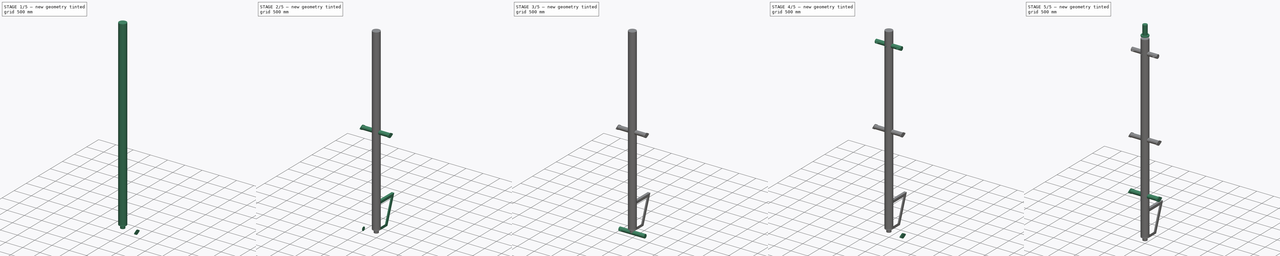
[diagram: build sequence overview — one tinted view per stage of 5, left to right]
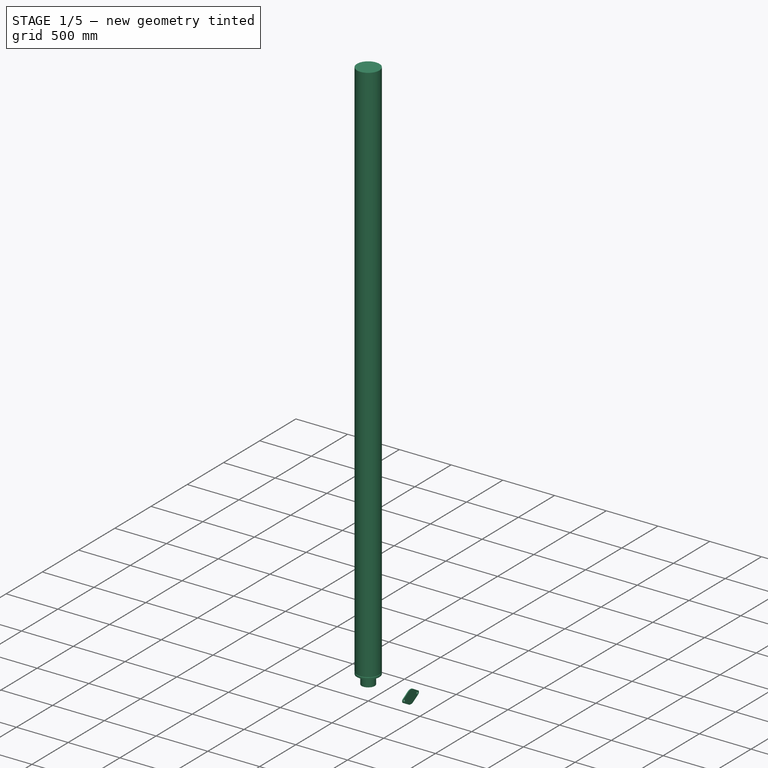
[diagram: stage 1 of 5 — iso view after this stage's code; geometry added in this stage tinted green]
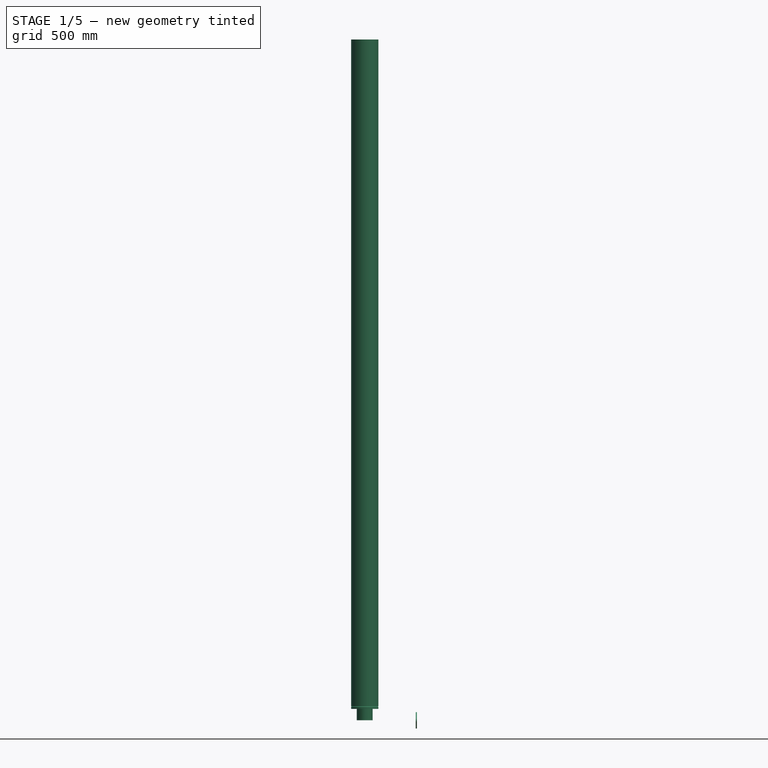
[diagram: stage 1 of 5 — front view after this stage's code; geometry added in this stage tinted green]
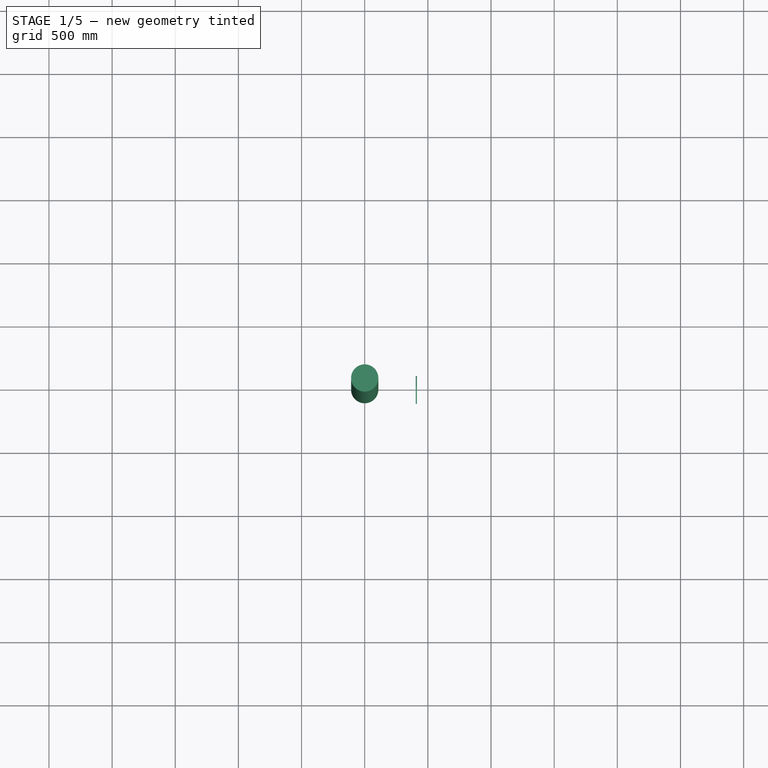
[diagram: stage 1 of 5 — top view after this stage's code; geometry added in this stage tinted green]
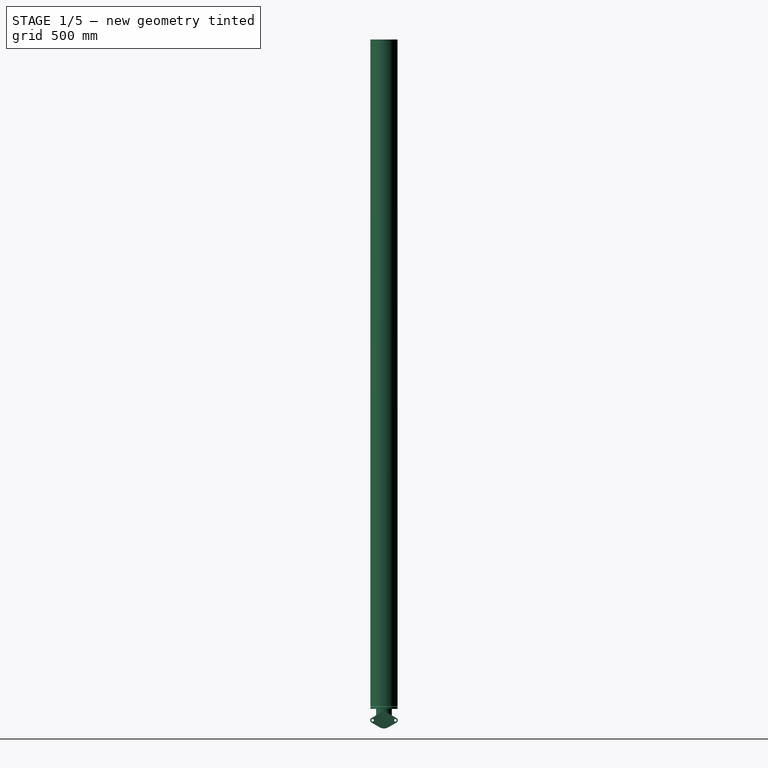
[diagram: stage 1 of 5 — right view after this stage's code; geometry added in this stage tinted green]
FCSTD DOCUMENT  (FreeCAD 1.0R39109 (Git))
Label: mainShaft
License: All rights reserved
LicenseURL: https://en.wikipedia.org/wiki/All_rights_reserved
objects: Sketcher::SketchObject×12, Part::Extrusion×7, Part::Compound×4, PartDesign::Body×3, Part::FeaturePython×3, Part::Mirroring×3, PartDesign::ShapeBinder×3, PartDesign::Revolution×2, PartDesign::Pad×2, App::Part×2, PartDesign::Chamfer×1, Spreadsheet::Sheet×1, Part::Sweep×1
note: 63 computed .brp shape members not serialized (recipe doc carries the construction recipe); baked Part::Feature solids carry a one-line shape summary decoded from their .brp

FEATURE [Sketcher::SketchObject] Sketch002
  ArcFitTolerance = 0
  AttachmentSupport = -> [XZ_Plane001]
  FullyConstrained = true
  MakeInternals = false
  MapMode = 5
  Placement = pos=(0,0,0) rot=(1,0,0;1.5708rad)
  sketch-geometry (8):
    g0: LineSegment StartX=40 StartY=0 StartZ=0 EndX=62.5 EndY=0 EndZ=0
    g1: LineSegment StartX=62.5 StartY=0 StartZ=0 EndX=62.5 EndY=90 EndZ=0
    g2: LineSegment StartX=62.5 StartY=90 StartZ=0 EndX=108 EndY=90 EndZ=0
    g3: LineSegment StartX=108 StartY=90 StartZ=0 EndX=108 EndY=110 EndZ=0
    g4: LineSegment StartX=108 StartY=110 StartZ=0 EndX=0 EndY=110 EndZ=0
    g5: LineSegment StartX=0 StartY=110 StartZ=0 EndX=0 EndY=65 EndZ=0
    g6: LineSegment StartX=40 StartY=0 StartZ=0 EndX=40 EndY=65 EndZ=0
    g7: LineSegment StartX=40 StartY=65 StartZ=0 EndX=0 EndY=65 EndZ=0
  constraints (24):
    c: PointOnObject(g0,g-1)
    c: Coincident(g0,g1)
    c: Vertical(g1)
    c: Coincident(g1,g2)
    c: Horizontal(g2)
    c: Coincident(g2,g3)
    c: Vertical(g3)
    c: Coincident(g3,g4)
    c: Horizontal(g4)
    c: Coincident(g4,g5)
    c: Vertical(g5)
    c: Vertical(g6)
    c: Coincident(g6,g7)
    c: Horizontal(g7)
    c: Coincident(g0,g6)
    c: Coincident(g5,g7)
    c: DistanceX(g-1,g0) = 40
    c: DistanceX(g-1,g0) = 62.5
    c: DistanceY(g6,g6) = 65
    c: Horizontal(g0)
    c: DistanceY(g1,g1) = 90
    c: DistanceY(g3,g3) = 20
    c: DistanceX(g4,g4) = 108
    c: PointOnObject(g4,g-2)
FEATURE [PartDesign::Revolution] Revolution001
  Angle = 360
  Angle2 = 60
  Axis = (0,2e-16,1)
  Base = (0,0,0)
  Placement = pos=(0,0,0) rot=(1,0,0;1.5708rad)
  Profile = -> Sketch002
  ReferenceAxis = -> Sketch002 [V_Axis]
  Reversed = true
  Suppressed = false
  Type = 0
FEATURE [PartDesign::Chamfer] Chamfer001
  Angle = 45
  Base = -> Revolution001 [Edge6]
  BaseFeature = -> Revolution001
  ChamferType = 0
  FlipDirection = false
  Placement = pos=(0,0,0) rot=(1,0,0;1.5708rad)
  Size = 5
  Size2 = 1
  SupportTransform = false
  Suppressed = false
  UseAllEdges = false
FEATURE [Sketcher::SketchObject] Sketch015
  ArcFitTolerance = 0
  AttachmentSupport = -> [Extrude006]
  FullyConstrained = true
  MakeInternals = false
  MapMode = 5
  Placement = pos=(417,0,0) rot=(0.57735,0.57735,0.57735;2.0944rad)
  sketch-geometry (10):
    g0: LineSegment StartX=32.5 StartY=56.2917 StartZ=0 EndX=100 EndY=17.3205 EndZ=0
    g1: ArcOfCircle CenterX=90 CenterY=0 CenterZ=0 NormalX=0 NormalY=0 NormalZ=1 AngleXU=0 Radius=20 StartAngle=5.23599 EndAngle=7.33038
    g2: LineSegment StartX=100 StartY=-17.3205 StartZ=0 EndX=32.5 EndY=-56.2917 EndZ=0
    g3: ArcOfCircle CenterX=0 CenterY=0 CenterZ=0 NormalX=0 NormalY=0 NormalZ=1 AngleXU=0 Radius=65 StartAngle=4.18879 EndAngle=5.23599
    g4: LineSegment StartX=-32.5 StartY=-56.2917 StartZ=0 EndX=-100 EndY=-17.3205 EndZ=0
    g5: ArcOfCircle CenterX=-90 CenterY=0 CenterZ=0 NormalX=0 NormalY=0 NormalZ=1 AngleXU=0 Radius=20 StartAngle=2.0944 EndAngle=4.18879
    g6: LineSegment StartX=-100 StartY=17.3205 StartZ=0 EndX=-32.5 EndY=56.2917 EndZ=0
    g7: ArcOfCircle CenterX=0 CenterY=0 CenterZ=0 NormalX=0 NormalY=0 NormalZ=1 AngleXU=0 Radius=65 StartAngle=1.0472 EndAngle=2.0944
    g8: Circle CenterX=90 CenterY=0 CenterZ=0 NormalX=0 NormalY=0 NormalZ=1 AngleXU=0 Radius=10
    g9: Circle CenterX=-90 CenterY=0 CenterZ=0 NormalX=0 NormalY=0 NormalZ=1 AngleXU=0 Radius=10
  constraints (24):
    c: Tangent(g0,g1) = 1.5708
    c: Coincident(g1,g2)
    c: Tangent(g2,g3) = 1.5708
    c: Coincident(g3,g4)
    c: Tangent(g4,g5) = 1.5708
    c: Tangent(g6,g7) = 1.5708
    c: Coincident(g7,g0)
    c: Coincident(g8,g1)
    c: Coincident(g9,g5)
    c: Coincident(g-1,g3)
    c: Coincident(g-1,g7)
    c: Diameter(g8) = 20
    c: Equal(g8,g9)
    c: Radius(g1) = 20
    c: Equal(g1,g5)
    c: Symmetric(g5,g1,g3)
    c: PointOnObject(g5,g-1)
    c: Tangent(g5,g6) = 1.5708
    c: Equal(g0,g2)
    c: Equal(g2,g4)
    c: Equal(g4,g6)
    c: DistanceX(g3,g1) = 90
    c: Radius(g3) = 65
    c: Equal(g3,g7)
FEATURE [Part::Extrusion] Extrude007  label="Extrude009"
  Base = -> Sketch015
  Dir = (1,0,0)
  DirMode = 2
  FaceMakerClass = Part::FaceMakerBullseye
  FaceMakerMode = 3
  LengthFwd = 9
  LengthRev = 0
  Placement = pos=(-12.5,0,0) rot=(0,0,1;0rad)
  Solid = true
  Symmetric = false
FEATURE [Sketcher::SketchObject] Sketch
  ArcFitTolerance = 1e-06
  AttachmentSupport = -> [Chamfer001]
  FullyConstrained = true
  MakeInternals = false
  MapMode = 5
  Placement = pos=(0,4.84e-14,110) rot=(0,0,1;3.14159rad)
  sketch-geometry (1):
    g0: Circle CenterX=0 CenterY=0 CenterZ=0 NormalX=0 NormalY=0 NormalZ=1 AngleXU=0 Radius=108
  constraints (2):
    c: Coincident(g0,g-1)
    c: Diameter(g0) = 216
FEATURE [PartDesign::Pad] Pad
  BaseFeature = -> Chamfer001
  Direction = (0,0,1)
  Length = 5280
  Length2 = 10
  Placement = pos=(0,0,0) rot=(1,0,0;1.5708rad)
  Profile = -> Sketch
  ReferenceAxis = -> Sketch [N_Axis]
  Suppressed = false
  Type = 0
  expr: Length = Spreadsheet.L0 - 420
FEATURE [PartDesign::Body] Body001  label="turnBackle001"
  AllowCompound = false
  Group = -> [Sketch002,Revolution001,Chamfer001,Sketch,Pad]
  Origin = -> Origin001
  Placement = pos=(0,0,60) rot=(0,0,1;0rad)
  Tip = -> Pad
FEATURE [App::Part] Part  label="mainShaft"
  Group = -> [Part001,Spreadsheet,Sketch004,Clone,Extrude001,Sketch005,Extrude,Compound,Part__Mirroring,Compound001,Sketch006,Extrude002,Sketch007,Extrude003,Body002,Body001,Sketch009,Extrude005,Mirror001,Compound002,Extrude007,Extrude006,Sketch014,Sketch015,Clone001,Compound003]
  Origin = -> Origin006
  Placement = pos=(0,0,0) rot=(0,0,1;3.14159rad)
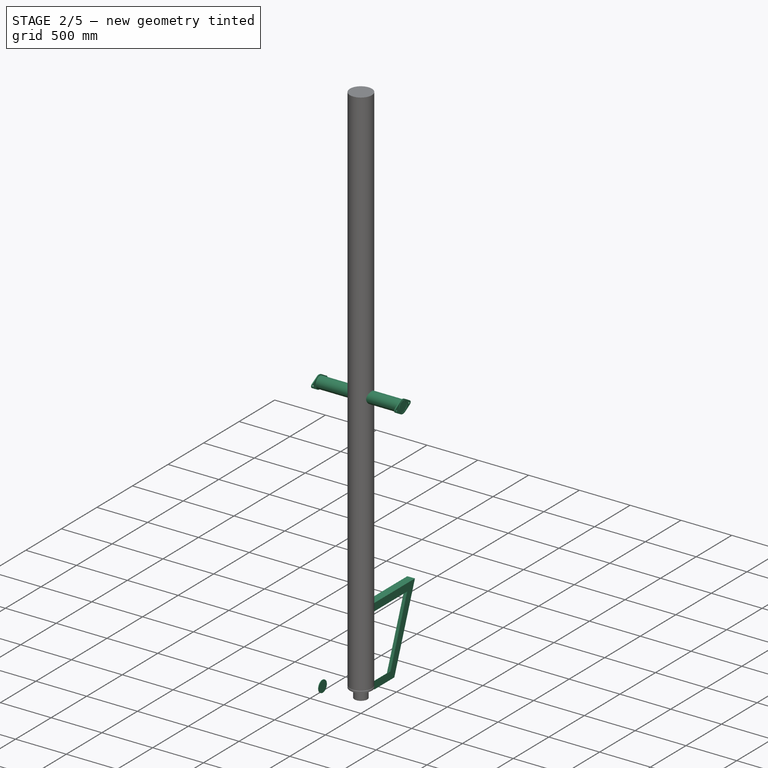
[diagram: stage 2 of 5 — iso view after this stage's code; geometry added in this stage tinted green]
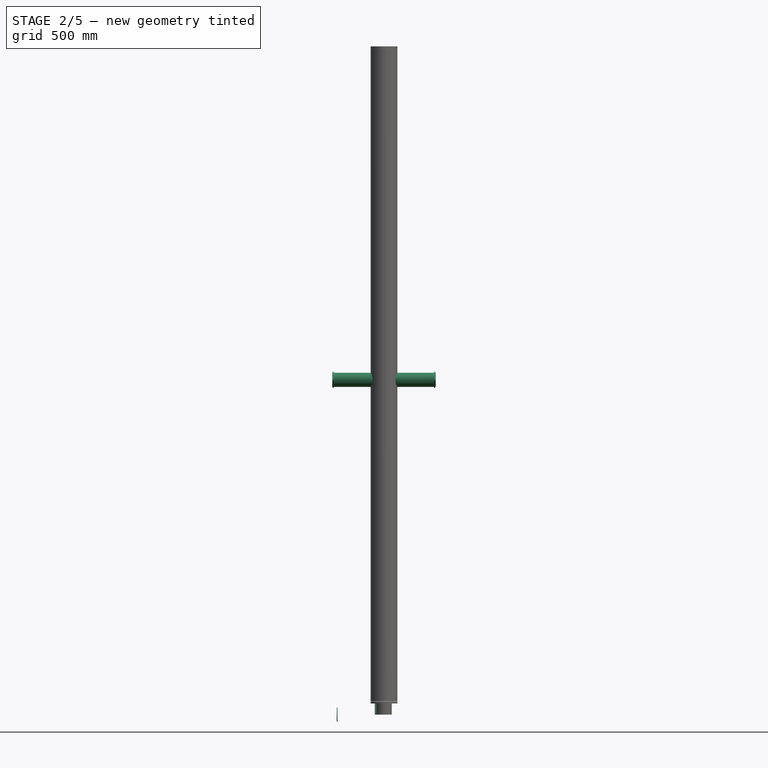
[diagram: stage 2 of 5 — front view after this stage's code; geometry added in this stage tinted green]
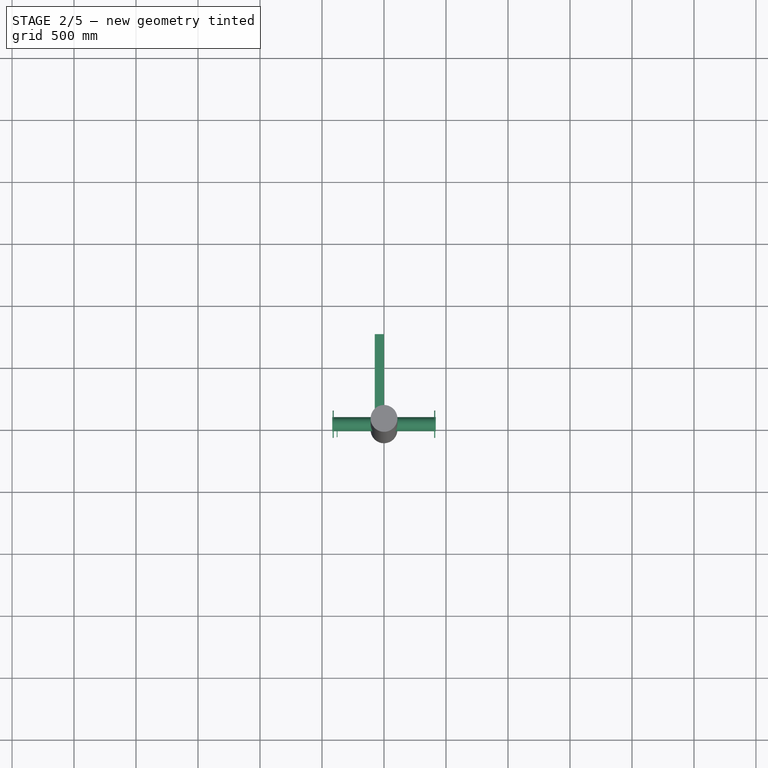
[diagram: stage 2 of 5 — top view after this stage's code; geometry added in this stage tinted green]
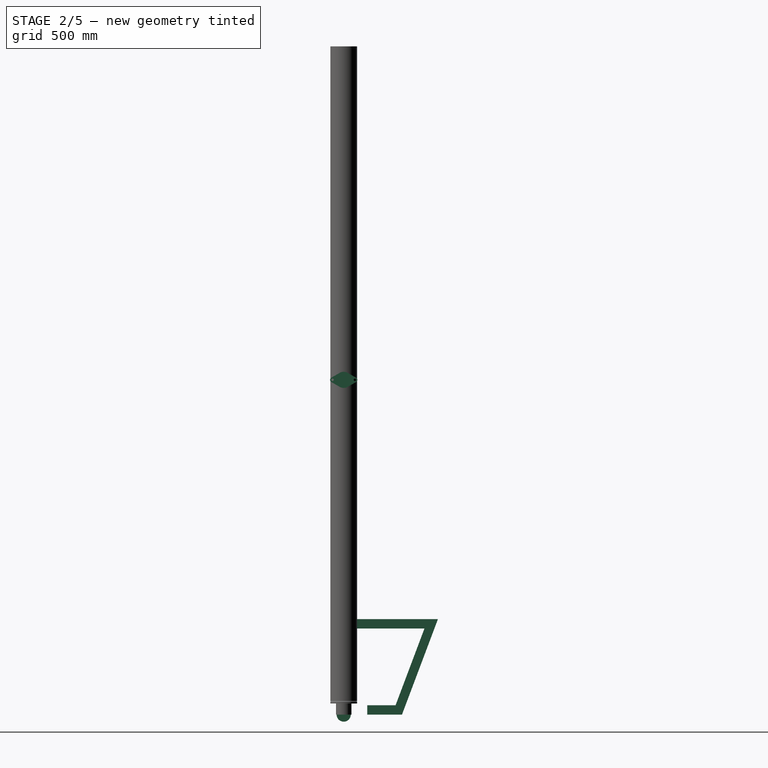
[diagram: stage 2 of 5 — right view after this stage's code; geometry added in this stage tinted green]
FEATURE [PartDesign::ShapeBinder] CopyExtrude002
  TraceSupport = false
FEATURE [Sketcher::SketchObject] Sketch011
  ArcFitTolerance = 1e-06
  AttachmentSupport = -> [CopyExtrude002]
  FullyConstrained = true
  MakeInternals = false
  MapMode = 5
  Placement = pos=(-375,0,0) rot=(0.57735,-0.57735,-0.57735;2.0944rad)
  sketch-geometry (1):
    g0: Circle CenterX=0 CenterY=0 CenterZ=0 NormalX=0 NormalY=0 NormalZ=1 AngleXU=0 Radius=57
  constraints (2):
    c: Coincident(g0,g-1)
    c: Diameter(g0) = 114
FEATURE [PartDesign::Pad] Pad001
  Direction = (-1,0,0)
  Length = 6
  Length2 = 10
  Profile = -> Sketch011
  ReferenceAxis = -> Sketch011 [N_Axis]
  Suppressed = false
  Type = 0
FEATURE [Sketcher::SketchObject] Sketch013
  ArcFitTolerance = 1e-06
  FullyConstrained = true
  MakeInternals = false
  Placement = pos=(0,0,0) rot=(0.57735,0.57735,0.57735;2.0944rad)
  sketch-geometry (3):
    g0: LineSegment StartX=0 StartY=770 StartZ=0 EndX=760 EndY=770 EndZ=0
    g1: LineSegment StartX=760 StartY=770 StartZ=0 EndX=470 EndY=0 EndZ=0
    g2: LineSegment StartX=470 StartY=0 StartZ=0 EndX=190 EndY=0 EndZ=0
  constraints (10):
    c: Horizontal(g0)
    c: Coincident(g0,g1)
    c: PointOnObject(g1,g-1)
    c: Coincident(g1,g2)
    c: PointOnObject(g2,g-1)
    c: PointOnObject(g0,g-2)
    c: DistanceX(g0,g0) = 760
    c: DistanceY(g-1,g0) = 770
    c: DistanceX(g2,g1) = 280
    c: Distance(g1,g-2) = 470
FEATURE [Part::FeaturePython] AngleSteel  # WARN: FeaturePython — macro-defined, semantics opaque (R4)
  A = 75
  B = 75
  L = 5500
  Placement = pos=(0,0,770) rot=(0,1,0;3.14159rad)
  Solid = false
  g0 = 7.85
  mass = 0
  size = 10
  standard = SS_Equal
  t = 6
  type = 00_Angle
FEATURE [Part::Sweep] Sweep
  Frenet = true
  Sections = -> [AngleSteel]
  Solid = true
  Spine = -> Sketch013 [Edge1,Edge2,Edge3]
  Transition = 1
FEATURE [App::Part] Part001  label="shaft"
  Group = -> [Sketch013,AngleSteel,Sweep]
  Origin = -> Origin004
  Placement = pos=(0,0,60) rot=(0,0,1;0rad)
FEATURE [Sketcher::SketchObject] Sketch014
  ArcFitTolerance = 0
  FullyConstrained = true
  MakeInternals = false
  Placement = pos=(0,0,0) rot=(0.57735,0.57735,0.57735;2.0944rad)
  sketch-geometry (2):
    g0: Circle CenterX=0 CenterY=0 CenterZ=0 NormalX=0 NormalY=0 NormalZ=1 AngleXU=0 Radius=50
    g1: Circle CenterX=0 CenterY=0 CenterZ=0 NormalX=0 NormalY=0 NormalZ=1 AngleXU=0 Radius=57
  constraints (4):
    c: Coincident(g0,g-1)
    c: Coincident(g1,g0)
    c: Diameter(g1) = 114
    c: Diameter(g0) = 100
FEATURE [Part::Extrusion] Extrude006  label="Extrude008"
  Base = -> Sketch014
  Dir = (1,0,0)
  DirMode = 2
  FaceMakerClass = Part::FaceMakerBullseye
  FaceMakerMode = 3
  LengthFwd = 834
  LengthRev = 0
  Solid = true
  Symmetric = true
  expr: LengthFwd = Spreadsheet.rbw + 34
FEATURE [Part::FeaturePython] Clone001  label="Extrude010"  # Draft clone (typed FeaturePython)
  AttacherType = Attacher::AttachEngine3D
  Fuse = false
  Objects = -> [Extrude007]
  Placement = pos=(-831,0,0) rot=(0,0,1;0rad)
  Scale = (1,1,1)
  expr: .Placement.Base.x = -Spreadsheet.rbw - 34 + 3
FEATURE [Part::Compound] Compound003  label="turnBackle"
  Links = -> [Clone001,Extrude006,Extrude007]
  Placement = pos=(0,0,2700) rot=(0,0,1;0rad)
  expr: .Placement.Base.z = Spreadsheet.lk + Spreadsheet.rts
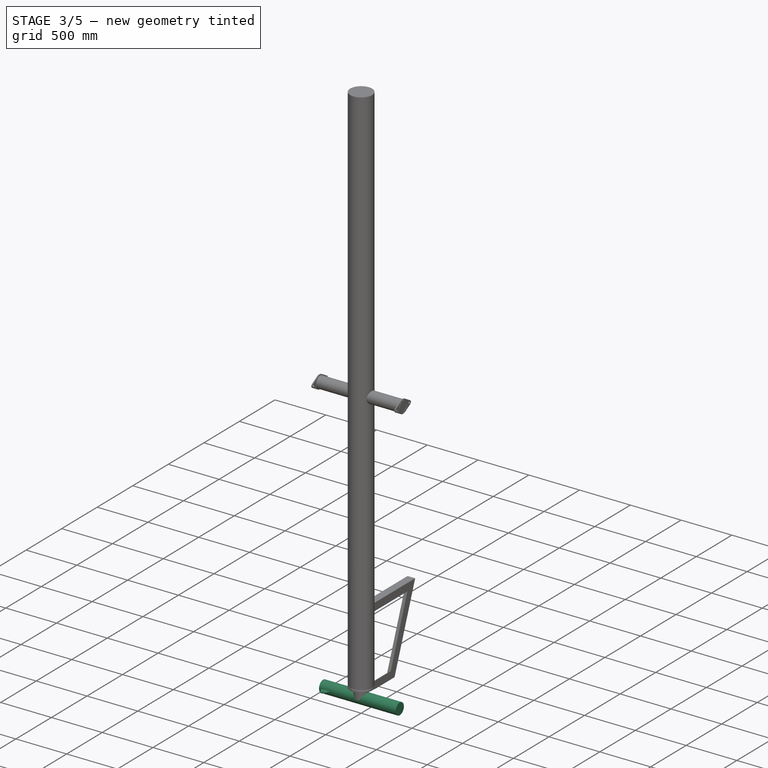
[diagram: stage 3 of 5 — iso view after this stage's code; geometry added in this stage tinted green]
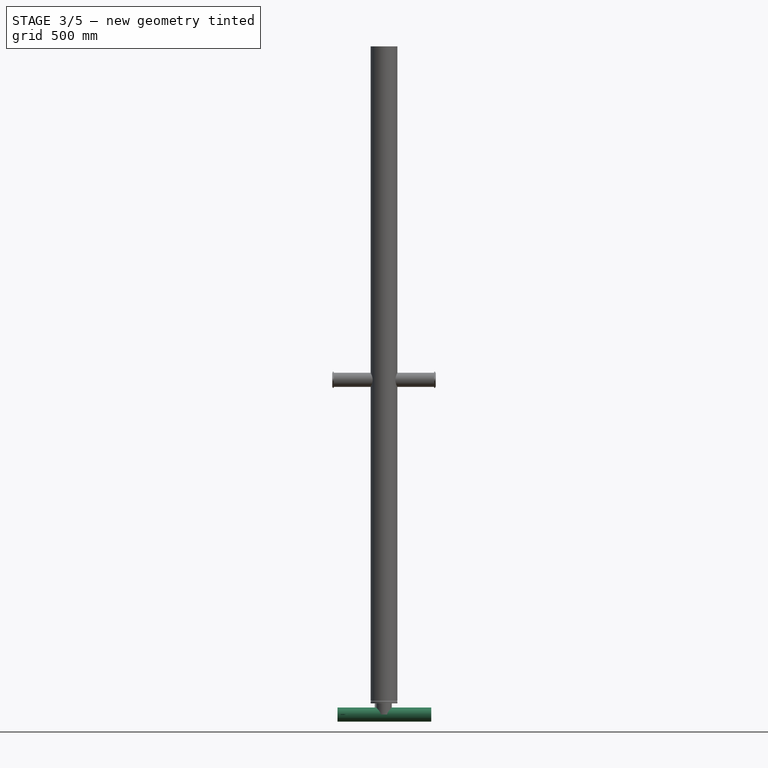
[diagram: stage 3 of 5 — front view after this stage's code; geometry added in this stage tinted green]
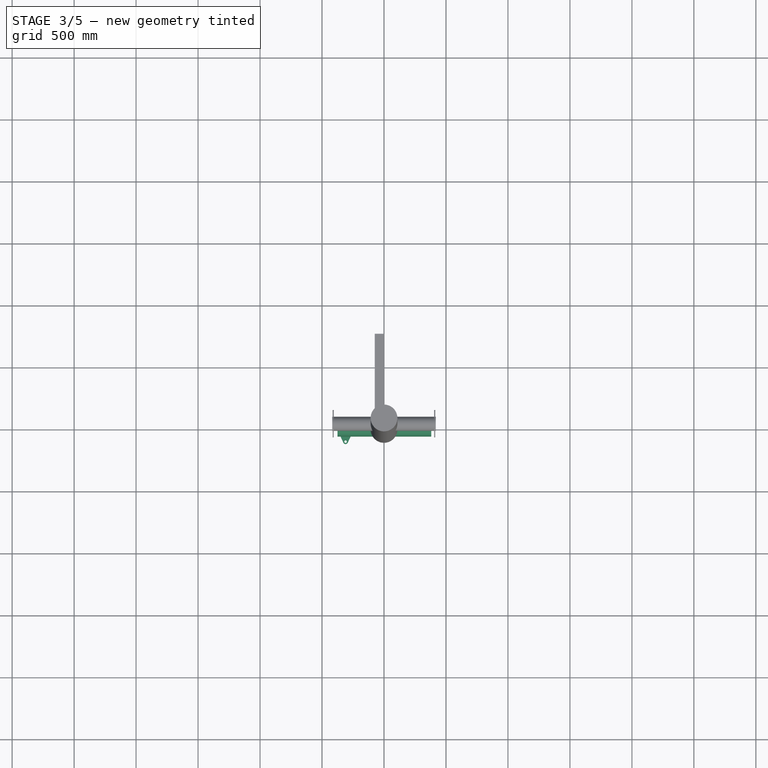
[diagram: stage 3 of 5 — top view after this stage's code; geometry added in this stage tinted green]
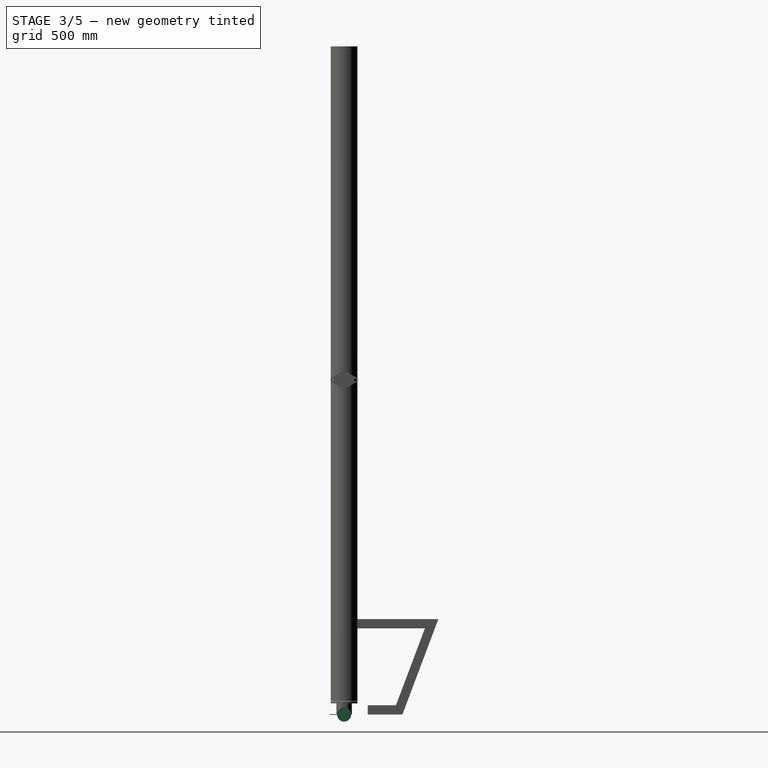
[diagram: stage 3 of 5 — right view after this stage's code; geometry added in this stage tinted green]
FEATURE [Sketcher::SketchObject] Sketch006
  ArcFitTolerance = 0
  FullyConstrained = true
  MakeInternals = false
  Placement = pos=(0,0,0) rot=(0.57735,0.57735,0.57735;2.0944rad)
  sketch-geometry (2):
    g0: Circle CenterX=0 CenterY=0 CenterZ=0 NormalX=0 NormalY=0 NormalZ=1 AngleXU=0 Radius=50
    g1: Circle CenterX=0 CenterY=0 CenterZ=0 NormalX=0 NormalY=0 NormalZ=1 AngleXU=0 Radius=57
  constraints (4):
    c: Coincident(g0,g-1)
    c: Coincident(g1,g0)
    c: Diameter(g0) = 100
    c: Diameter(g1) = 114
FEATURE [Part::Extrusion] Extrude002  label="Extrude003"
  Base = -> Sketch006
  Dir = (1,0,0)
  DirMode = 2
  FaceMakerClass = Part::FaceMakerBullseye
  FaceMakerMode = 3
  LengthFwd = 750
  LengthRev = 0
  Solid = true
  Symmetric = true
  expr: LengthFwd = Spreadsheet.sbw
FEATURE [Sketcher::SketchObject] Sketch009
  ArcFitTolerance = 0
  FullyConstrained = true
  MakeInternals = false
  sketch-geometry (5):
    g0: LineSegment StartX=350 StartY=-57 StartZ=0 EndX=270 EndY=-57 EndZ=0
    g1: LineSegment StartX=270 StartY=-57 StartZ=0 EndX=291.771 EndY=-105.229 EndZ=0
    g2: ArcOfCircle CenterX=310 CenterY=-97 CenterZ=0 NormalX=0 NormalY=0 NormalZ=1 AngleXU=0 Radius=20 StartAngle=3.56562 EndAngle=5.85915
    g3: LineSegment StartX=328.229 StartY=-105.229 StartZ=0 EndX=350 EndY=-57 EndZ=0
    g4: Circle CenterX=310 CenterY=-97 CenterZ=0 NormalX=0 NormalY=0 NormalZ=1 AngleXU=0 Radius=10
  constraints (13):
    c: Horizontal(g0)
    c: Coincident(g0,g1)
    c: Tangent(g1,g2) = -1.5708
    c: Coincident(g3,g0)
    c: Coincident(g4,g2)
    c: Diameter(g4) = 20
    c: Radius(g2) = 20
    c: DistanceX(g0,g0) = 80
    c: Distance(g2,g0) = 40
    c: Tangent(g2,g3) = -1.5708
    c: Equal(g1,g3)
    c: DistanceY(g0,g-1) = 57
    c: DistanceX(g-1,g0) = 350
FEATURE [Part::Extrusion] Extrude005  label="Extrude006"
  Base = -> Sketch009
  Dir = (0,0,1)
  DirMode = 2
  FaceMakerClass = Part::FaceMakerBullseye
  FaceMakerMode = 3
  LengthFwd = 6
  LengthRev = 0
  Solid = true
  Symmetric = true
FEATURE [Part::Mirroring] Mirror001  label="Extrude006 (mirrored)"
  Base = (0,-500,0)
  Normal = (1,0,0)
  Source = -> Extrude005
FEATURE [PartDesign::ShapeBinder] CopyExtrude003
  TraceSupport = false
FEATURE [PartDesign::ShapeBinder] ReferenceExtrude002
  Support = -> [Extrude002]
  TraceSupport = false
FEATURE [PartDesign::Body] Body
  AllowCompound = false
  Group = -> [CopyExtrude002,Sketch011,Pad001,CopyExtrude003,ReferenceExtrude002]
  Origin = -> Origin
  Tip = -> Pad001
FEATURE [Part::Mirroring] Mirror  label="Pad001 (mirrored)"
  Base = (0,4.44e-14,-200)
  Normal = (-1,0,0)
  Source = -> Pad001
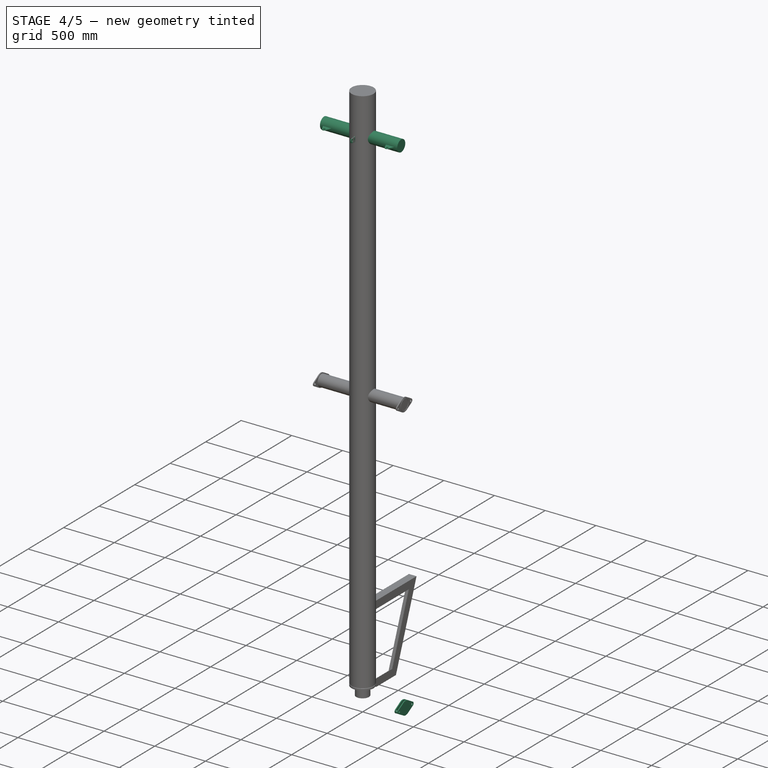
[diagram: stage 4 of 5 — iso view after this stage's code; geometry added in this stage tinted green]
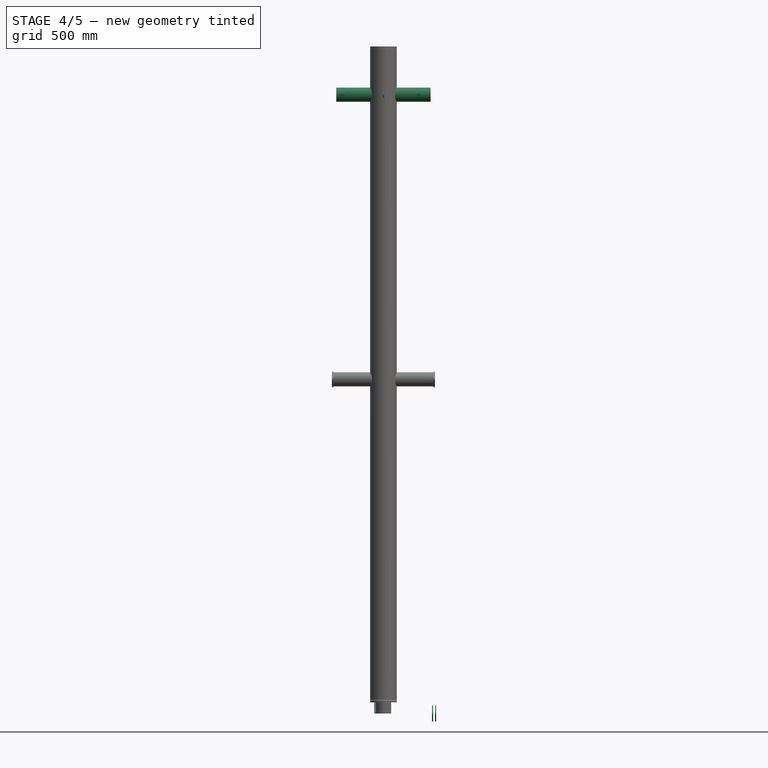
[diagram: stage 4 of 5 — front view after this stage's code; geometry added in this stage tinted green]
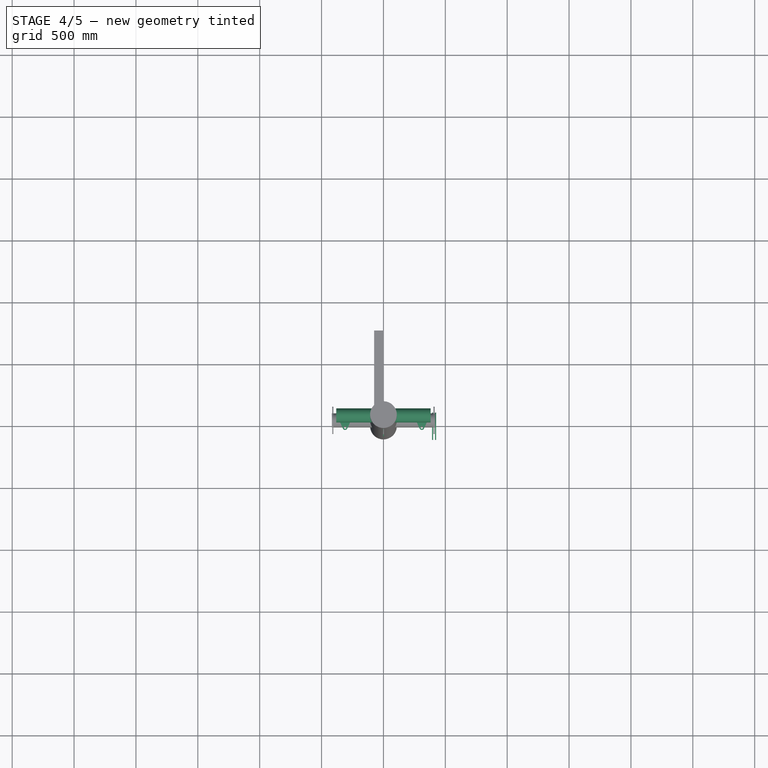
[diagram: stage 4 of 5 — top view after this stage's code; geometry added in this stage tinted green]
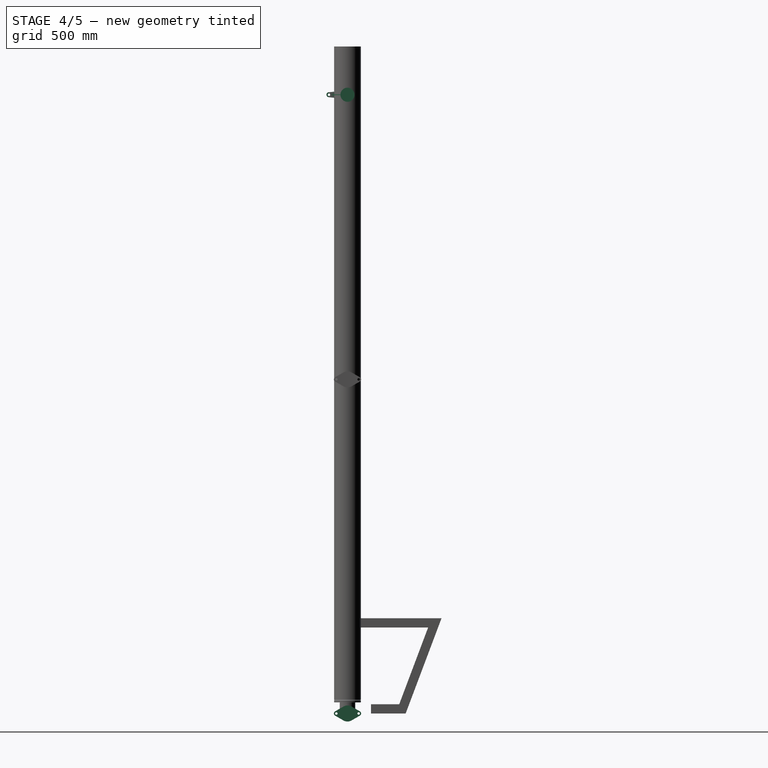
[diagram: stage 4 of 5 — right view after this stage's code; geometry added in this stage tinted green]
FEATURE [Sketcher::SketchObject] Sketch005
  ArcFitTolerance = 0
  AttachmentSupport = -> [Extrude]
  FullyConstrained = true
  MakeInternals = false
  MapMode = 5
  Placement = pos=(417,0,0) rot=(0.57735,0.57735,0.57735;2.0944rad)
  sketch-geometry (10):
    g0: LineSegment StartX=32.5 StartY=56.2917 StartZ=0 EndX=100 EndY=17.3205 EndZ=0
    g1: ArcOfCircle CenterX=90 CenterY=0 CenterZ=0 NormalX=0 NormalY=0 NormalZ=1 AngleXU=0 Radius=20 StartAngle=5.23599 EndAngle=7.33038
    g2: LineSegment StartX=100 StartY=-17.3205 StartZ=0 EndX=32.5 EndY=-56.2917 EndZ=0
    g3: ArcOfCircle CenterX=0 CenterY=0 CenterZ=0 NormalX=0 NormalY=0 NormalZ=1 AngleXU=0 Radius=65 StartAngle=4.18879 EndAngle=5.23599
    g4: LineSegment StartX=-32.5 StartY=-56.2917 StartZ=0 EndX=-100 EndY=-17.3205 EndZ=0
    g5: ArcOfCircle CenterX=-90 CenterY=0 CenterZ=0 NormalX=0 NormalY=0 NormalZ=1 AngleXU=0 Radius=20 StartAngle=2.0944 EndAngle=4.18879
    g6: LineSegment StartX=-100 StartY=17.3205 StartZ=0 EndX=-32.5 EndY=56.2917 EndZ=0
    g7: ArcOfCircle CenterX=0 CenterY=0 CenterZ=0 NormalX=0 NormalY=0 NormalZ=1 AngleXU=0 Radius=65 StartAngle=1.0472 EndAngle=2.0944
    g8: Circle CenterX=90 CenterY=0 CenterZ=0 NormalX=0 NormalY=0 NormalZ=1 AngleXU=0 Radius=10
    g9: Circle CenterX=-90 CenterY=0 CenterZ=0 NormalX=0 NormalY=0 NormalZ=1 AngleXU=0 Radius=10
  constraints (24):
    c: Tangent(g0,g1) = 1.5708
    c: Coincident(g1,g2)
    c: Tangent(g2,g3) = 1.5708
    c: Coincident(g3,g4)
    c: Tangent(g4,g5) = 1.5708
    c: Tangent(g6,g7) = 1.5708
    c: Coincident(g7,g0)
    c: Coincident(g8,g1)
    c: Coincident(g9,g5)
    c: Coincident(g-1,g3)
    c: Coincident(g-1,g7)
    c: Diameter(g8) = 20
    c: Equal(g8,g9)
    c: Radius(g1) = 20
    c: Equal(g1,g5)
    c: Symmetric(g5,g1,g3)
    c: PointOnObject(g5,g-1)
    c: Tangent(g5,g6) = 1.5708
    c: Equal(g0,g2)
    c: Equal(g2,g4)
    c: Equal(g4,g6)
    c: DistanceX(g3,g1) = 90
    c: Radius(g3) = 65
    c: Equal(g3,g7)
FEATURE [Part::Extrusion] Extrude001
  Base = -> Sketch005
  Dir = (1,0,0)
  DirMode = 2
  FaceMakerClass = Part::FaceMakerBullseye
  FaceMakerMode = 3
  LengthFwd = 9
  LengthRev = 0
  Solid = true
  Symmetric = false
FEATURE [Part::FeaturePython] Clone  label="Extrude002"  # Draft clone (typed FeaturePython)
  AttacherType = Attacher::AttachEngine3D
  Fuse = false
  Objects = -> [Extrude001]
  Placement = pos=(-25,0,0) rot=(0,0,1;0rad)
  Scale = (1,1,1)
FEATURE [Part::Compound] Compound
  Links = -> [Extrude001,Clone]
FEATURE [Sketcher::SketchObject] Sketch007
  ArcFitTolerance = 0
  FullyConstrained = false
  MakeInternals = false
  Placement = pos=(0,0,0) rot=(0.57735,0.57735,0.57735;2.0944rad)
  sketch-geometry (5):
    g0: LineSegment StartX=-47.753 StartY=31.1231 StartZ=0 EndX=-152.141 EndY=19.8851 EndZ=0
    g1: ArcOfCircle CenterX=-150 CenterY=0 CenterZ=0 NormalX=0 NormalY=0 NormalZ=1 AngleXU=0 Radius=20 StartAngle=1.67804 EndAngle=4.60515
    g2: LineSegment StartX=-152.141 StartY=-19.8851 StartZ=0 EndX=-47.753 EndY=-31.1231 EndZ=0
    g3: ArcOfCircle CenterX=0 CenterY=0 CenterZ=0 NormalX=0 NormalY=0 NormalZ=1 AngleXU=0 Radius=57 StartAngle=2.56399 EndAngle=3.7192
    g4: Circle CenterX=-150 CenterY=0 CenterZ=0 NormalX=0 NormalY=0 NormalZ=1 AngleXU=0 Radius=10
  constraints (12):
    c: Tangent(g0,g1) = -1.5708
    c: Coincident(g3,g2)
    c: Coincident(g3,g0)
    c: Coincident(g3,g-3)
    c: Radius(g3) = 57
    c: Horizontal(g1,g3)
    c: Vertical(g2,g0)
    c: Coincident(g4,g1)
    c: Radius(g4) = 10
    c: Radius(g1) = 20
    c: Tangent(g1,g2) = -1.5708
    c: DistanceX(g1,g3) = 150
FEATURE [Part::Extrusion] Extrude003  label="Extrude004"
  Base = -> Sketch007
  Dir = (1,0,0)
  DirMode = 2
  FaceMakerClass = Part::FaceMakerBullseye
  FaceMakerMode = 3
  LengthFwd = 6
  LengthRev = 0
  Solid = true
  Symmetric = true
FEATURE [Part::Compound] Compound002  label="arm_skimmer"
  Links = -> [Mirror001,Extrude005,Extrude003,Extrude002,Body,Mirror]
  Placement = pos=(0,0,5000) rot=(0,0,1;0rad)
  expr: .Placement.Base.z = Spreadsheet.ls
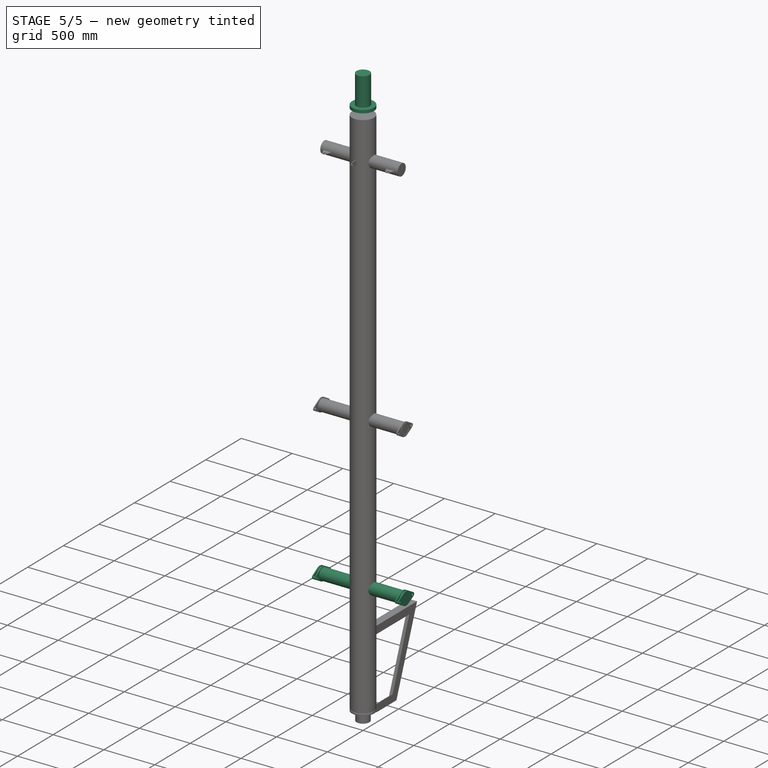
[diagram: stage 5 of 5 — iso view after this stage's code; geometry added in this stage tinted green]
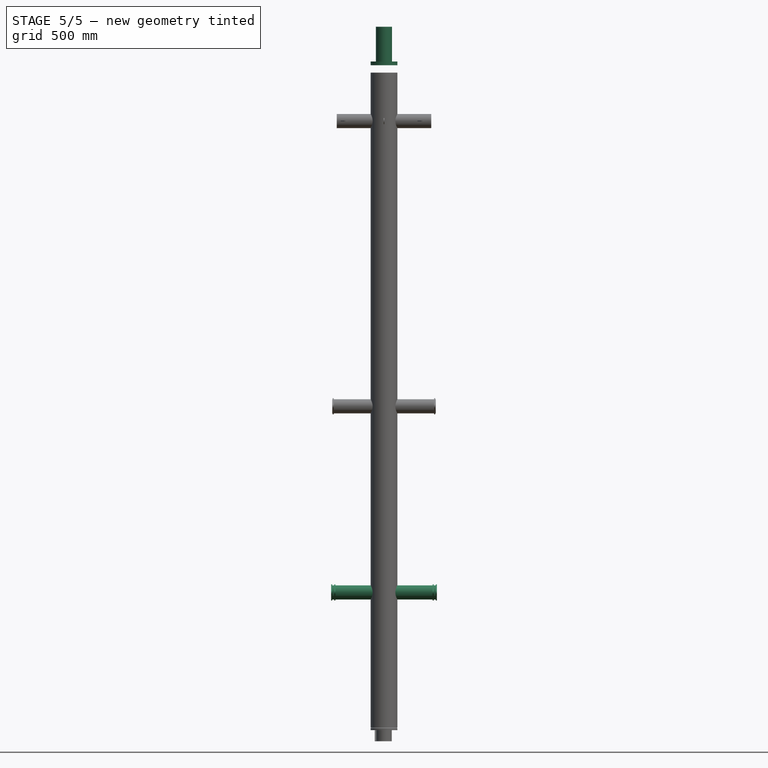
[diagram: stage 5 of 5 — front view after this stage's code; geometry added in this stage tinted green]
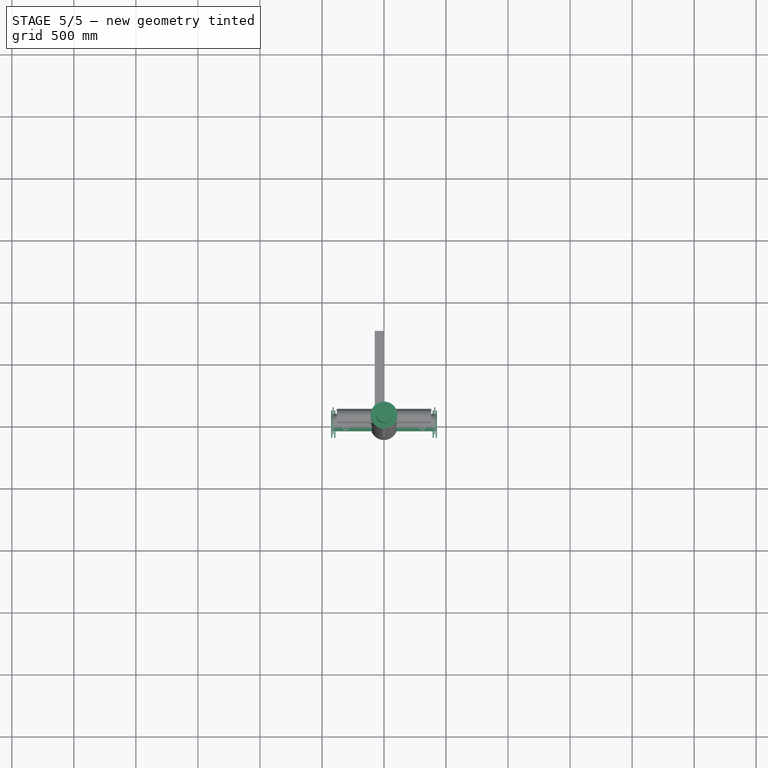
[diagram: stage 5 of 5 — top view after this stage's code; geometry added in this stage tinted green]
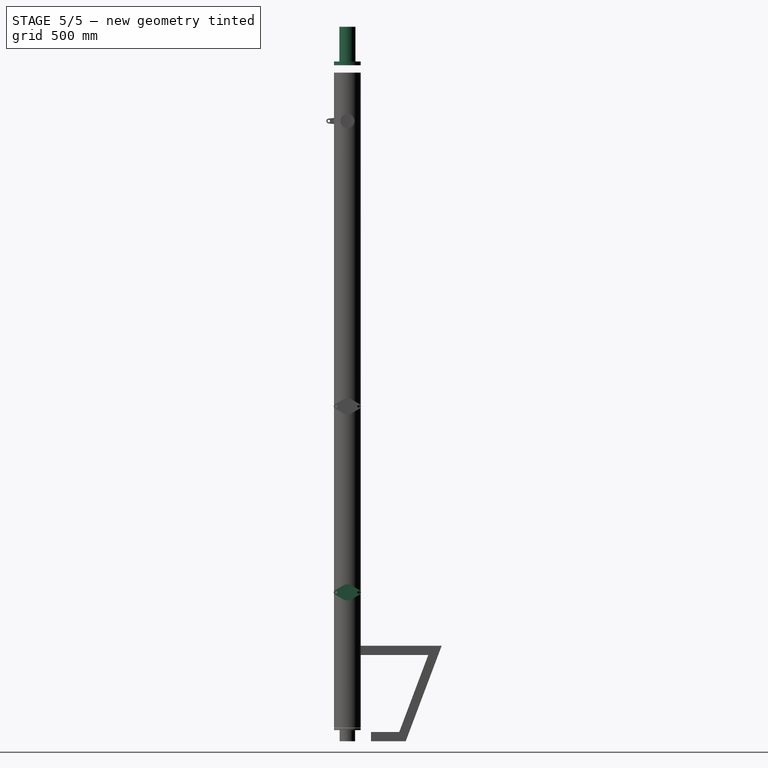
[diagram: stage 5 of 5 — right view after this stage's code; geometry added in this stage tinted green]
FEATURE [Spreadsheet::Sheet] Spreadsheet
  cells = A2='full Length   L0; B2(L0)=5700; A3='pipe Length   l1; B3(l1)==L0 - (110 + 310); A4='rake Position lk; B4(lk)=1200; A5='rake Braket Width; B5(rbw)=800; A6='skimmer Position  ls; B6(ls)=5000; A7='skimmer Bracket Width; B7(sbw)=750; A8='rake turnbackle spacing; B8(rts)=1500
FEATURE [Sketcher::SketchObject] Sketch003
  ArcFitTolerance = 0
  AttachmentSupport = -> [XZ_Plane002]
  FullyConstrained = true
  MakeInternals = false
  MapMode = 5
  Placement = pos=(0,0,0) rot=(1,0,0;1.5708rad)
  expr: Constraints[17] = Spreadsheet.l1 + 170
  sketch-geometry (6):
    g0: LineSegment StartX=0 StartY=5450 StartZ=0 EndX=108 EndY=5450 EndZ=0
    g1: LineSegment StartX=108 StartY=5450 StartZ=0 EndX=108 EndY=5480 EndZ=0
    g2: LineSegment StartX=108 StartY=5480 StartZ=0 EndX=65 EndY=5480 EndZ=0
    g3: LineSegment StartX=65 StartY=5480 StartZ=0 EndX=65 EndY=5760 EndZ=0
    g4: LineSegment StartX=65 StartY=5760 StartZ=0 EndX=0 EndY=5760 EndZ=0
    g5: LineSegment StartX=0 StartY=5760 StartZ=0 EndX=0 EndY=5450 EndZ=0
  constraints (18):
    c: Horizontal(g0)
    c: Coincident(g0,g1)
    c: Coincident(g1,g2)
    c: Coincident(g2,g3)
    c: Vertical(g3)
    c: Coincident(g3,g4)
    c: Horizontal(g4)
    c: Coincident(g4,g5)
    c: Coincident(g5,g0)
    c: Vertical(g5)
    c: PointOnObject(g4,g-2)
    c: DistanceX(g4,g4) = 65
    c: Horizontal(g2)
    c: Vertical(g1)
    c: DistanceY(g1,g1) = 30
    c: DistanceX(g0,g0) = 108
    c: DistanceY(g3,g3) = 280
    c: DistanceY(g-1,g0) = 5450
FEATURE [PartDesign::Revolution] Revolution002
  Angle = 360
  Angle2 = 60
  Axis = (0,2e-16,1)
  Base = (0,0,0)
  Placement = pos=(0,0,0) rot=(1,0,0;1.5708rad)
  Profile = -> Sketch003
  ReferenceAxis = -> Sketch003 [V_Axis]
  Reversed = true
  Suppressed = false
  Type = 0
FEATURE [PartDesign::Body] Body002  label="top"
  AllowCompound = false
  Group = -> [Sketch003,Revolution002]
  Origin = -> Origin002
  Tip = -> Revolution002
FEATURE [Sketcher::SketchObject] Sketch004
  ArcFitTolerance = 0
  FullyConstrained = true
  MakeInternals = false
  Placement = pos=(0,0,0) rot=(0.57735,0.57735,0.57735;2.0944rad)
  sketch-geometry (2):
    g0: Circle CenterX=0 CenterY=0 CenterZ=0 NormalX=0 NormalY=0 NormalZ=1 AngleXU=0 Radius=50
    g1: Circle CenterX=0 CenterY=0 CenterZ=0 NormalX=0 NormalY=0 NormalZ=1 AngleXU=0 Radius=57
  constraints (4):
    c: Coincident(g0,g-1)
    c: Coincident(g1,g0)
    c: Diameter(g1) = 114
    c: Diameter(g0) = 100
FEATURE [Part::Extrusion] Extrude
  Base = -> Sketch004
  Dir = (1,0,0)
  DirMode = 2
  FaceMakerClass = Part::FaceMakerBullseye
  FaceMakerMode = 3
  LengthFwd = 834
  LengthRev = 0
  Solid = true
  Symmetric = true
  expr: LengthFwd = Spreadsheet.rbw + 34
FEATURE [Part::Mirroring] Part__Mirroring  label="Compound (Mirror #1)"
  Base = (0,0,0)
  Normal = (1,0,0)
  Source = -> Compound
FEATURE [Part::Compound] Compound001  label="arm_rake"
  Links = -> [Extrude,Part__Mirroring,Compound]
  Placement = pos=(0,0,1200) rot=(0,0,1;0rad)
  expr: .Placement.Base.z = Spreadsheet.lk
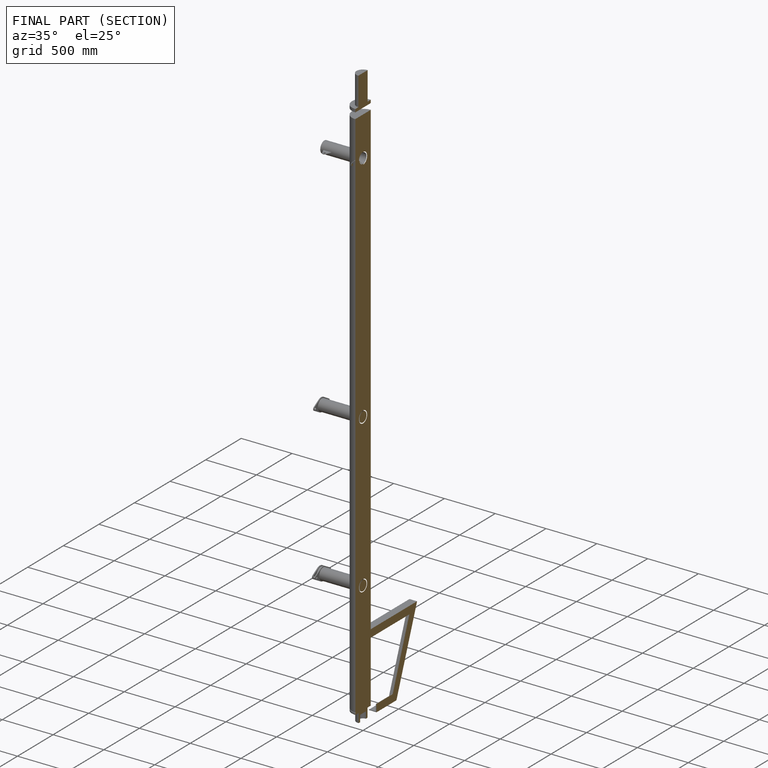
[diagram: finished part — half-section view (interior)]
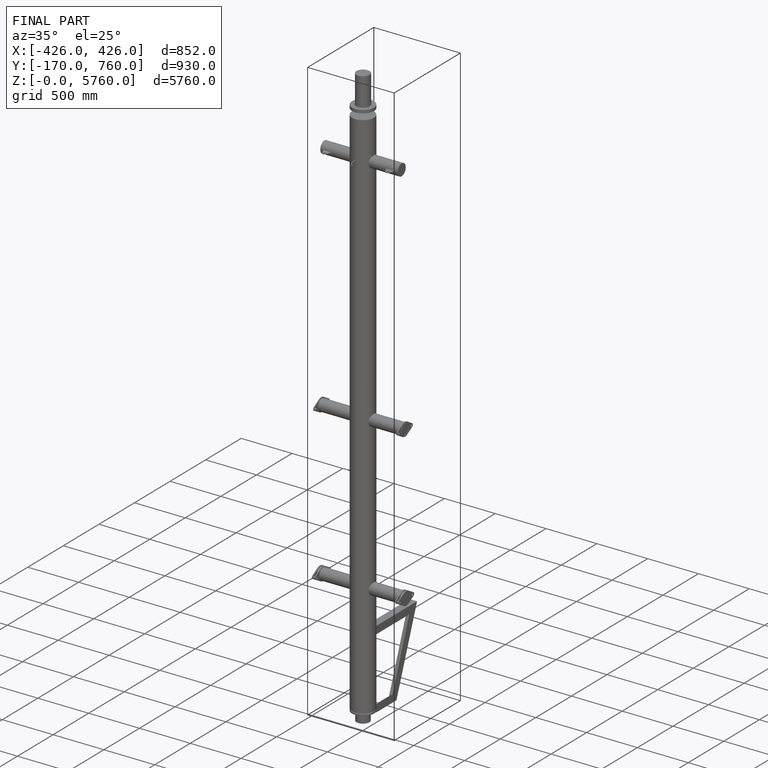
[diagram: finished part — iso view with bounding-box wireframe]
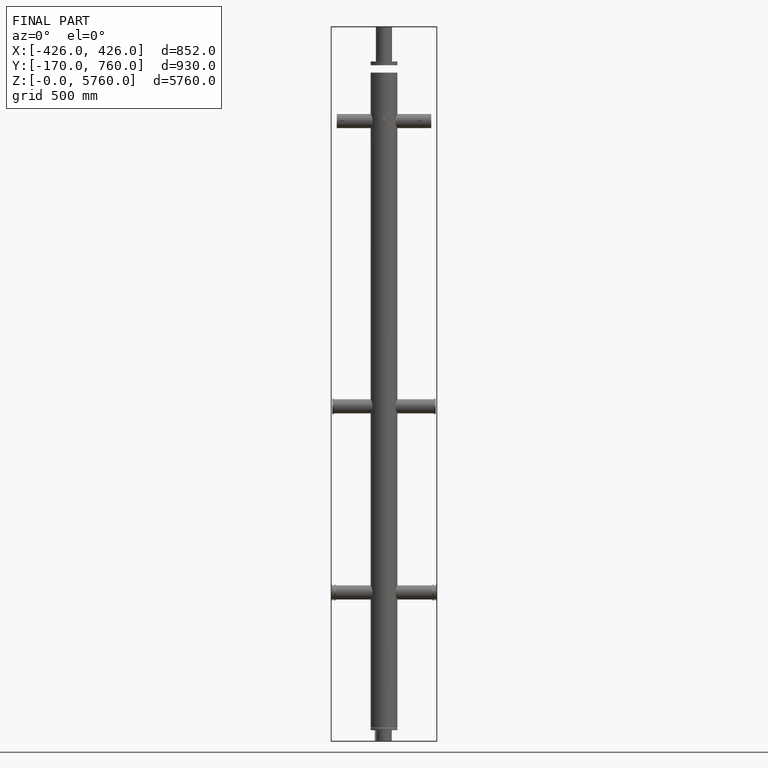
[diagram: finished part — front view with bounding-box wireframe]
